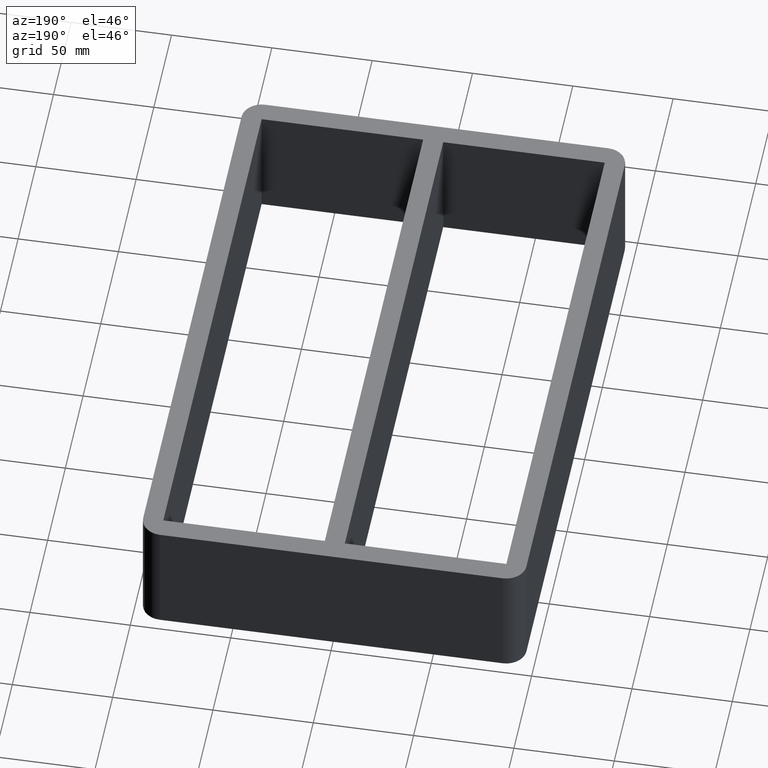
[diagram: clean part render]
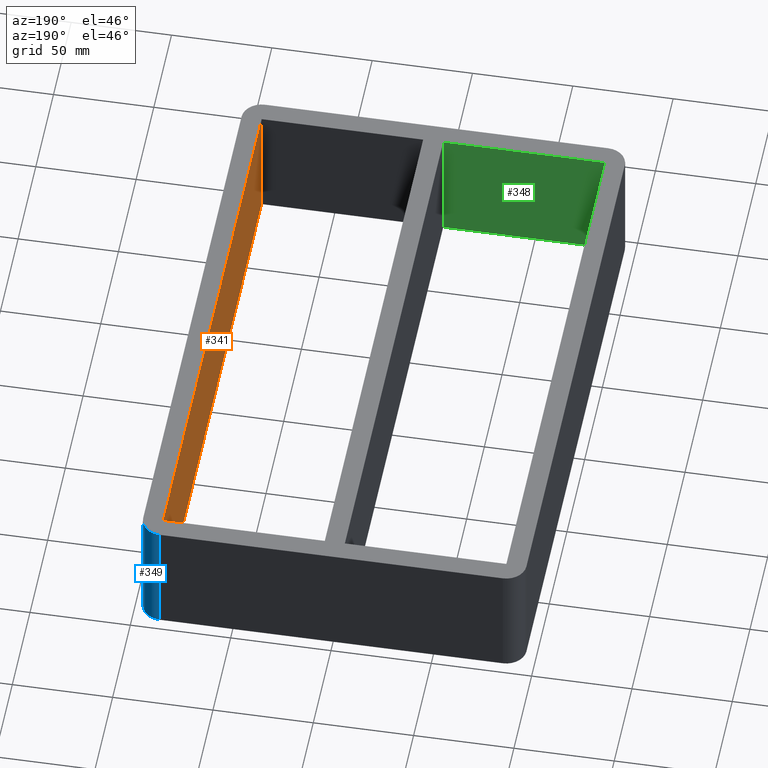
[diagram: same view with three faces highlighted in distinct colors, each labeled with its STEP entity id]
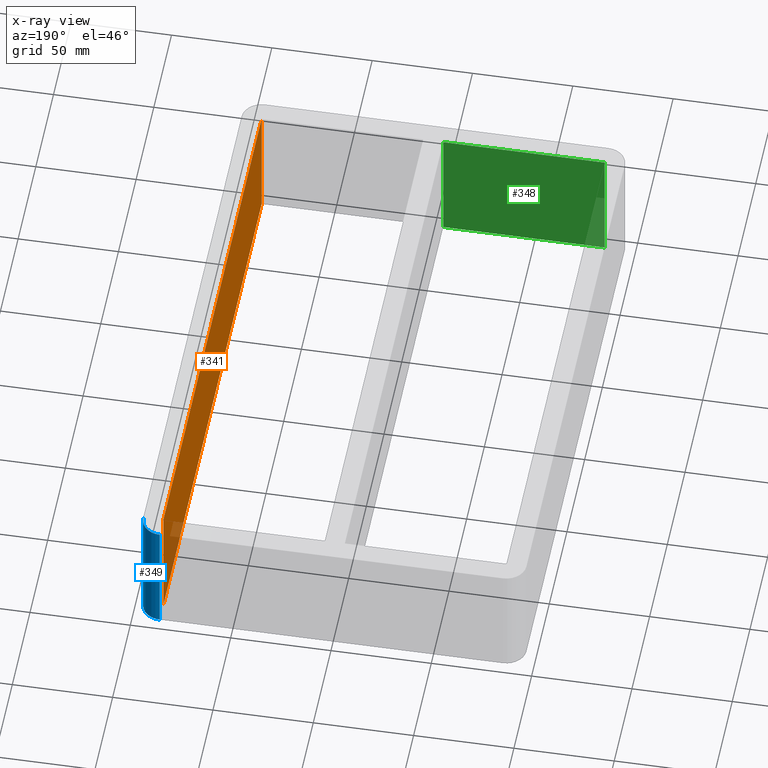
[diagram: x-ray of the same camera — body ghosted, the three highlighted faces saturated]
A machine part, auxiliary view with three faces highlighted in distinct colors.
The next image is the same camera in x-ray (body ghosted, the three faces saturated) — at least one of them is partly hidden behind the body in this view.
Their STEP definitions:

[orange] entity #341 — the highlighted planar face has unit normal (1, 0, 0).
#31=FACE_OUTER_BOUND('',#49,.T.);
#49=EDGE_LOOP('',(#231,#232,#233,#234));
#71=LINE('',#503,#111);
#72=LINE('',#505,#112);
#73=LINE('',#507,#113);
#74=LINE('',#508,#114);
#111=VECTOR('',#409,10.);
#112=VECTOR('',#410,10.);
#113=VECTOR('',#411,10.);
#114=VECTOR('',#412,10.);
#151=VERTEX_POINT('',#501);
#152=VERTEX_POINT('',#502);
#153=VERTEX_POINT('',#504);
#154=VERTEX_POINT('',#506);
#183=EDGE_CURVE('',#151,#152,#71,.T.);
#184=EDGE_CURVE('',#153,#151,#72,.T.);
#185=EDGE_CURVE('',#154,#153,#73,.T.);
#186=EDGE_CURVE('',#154,#152,#74,.T.);
#231=ORIENTED_EDGE('',*,*,#183,.F.);
#232=ORIENTED_EDGE('',*,*,#184,.F.);
#233=ORIENTED_EDGE('',*,*,#185,.F.);
#234=ORIENTED_EDGE('',*,*,#186,.T.);
#327=PLANE('',#379);
#341=ADVANCED_FACE('',(#31),#327,.F.);
#379=AXIS2_PLACEMENT_3D('',#500,#407,#408);
#407=DIRECTION('center_axis',(1.,6.38977280359802E-17,0.));
#408=DIRECTION('ref_axis',(6.38977280359802E-17,-1.,0.));
#409=DIRECTION('',(-6.38977280359802E-17,1.,0.));
#410=DIRECTION('',(0.,0.,-1.));
#411=DIRECTION('',(6.38977280359802E-17,-1.,0.));
#412=DIRECTION('',(0.,0.,-1.));
#500=CARTESIAN_POINT('Origin',(85.4999999999982,138.999999999991,0.));
#501=CARTESIAN_POINT('',(85.4999999999982,-139.000000000009,-60.));
#502=CARTESIAN_POINT('',(85.4999999999982,138.999999999991,-60.));
#503=CARTESIAN_POINT('',(85.4999999999982,69.4999999999954,-60.));
#504=CARTESIAN_POINT('',(85.4999999999982,-139.000000000009,0.));
#505=CARTESIAN_POINT('',(85.4999999999982,-139.000000000009,0.));
#506=CARTESIAN_POINT('',(85.4999999999982,138.999999999991,0.));
#507=CARTESIAN_POINT('',(85.4999999999982,69.4999999999954,0.));
#508=CARTESIAN_POINT('',(85.4999999999982,138.999999999991,0.));

[blue] entity #349 — the highlighted cylindrical surface (edge-blend (fillet) strip) has radius 10 mm, axis along (0, 0, -1).
#19=CIRCLE('',#388,10.);
#20=CIRCLE('',#389,10.);
#27=CYLINDRICAL_SURFACE('',#387,10.);
#39=FACE_OUTER_BOUND('',#57,.T.);
#57=EDGE_LOOP('',(#263,#264,#265,#266));
#95=LINE('',#553,#135);
#96=LINE('',#556,#136);
#135=VECTOR('',#451,10.);
#136=VECTOR('',#454,10.);
#167=VERTEX_POINT('',#549);
#168=VERTEX_POINT('',#550);
#169=VERTEX_POINT('',#552);
#170=VERTEX_POINT('',#554);
#207=EDGE_CURVE('',#167,#168,#19,.T.);
#208=EDGE_CURVE('',#168,#169,#95,.T.);
#209=EDGE_CURVE('',#169,#170,#20,.T.);
#210=EDGE_CURVE('',#170,#167,#96,.T.);
#263=ORIENTED_EDGE('',*,*,#207,.T.);
#264=ORIENTED_EDGE('',*,*,#208,.T.);
#265=ORIENTED_EDGE('',*,*,#209,.T.);
#266=ORIENTED_EDGE('',*,*,#210,.T.);
#349=ADVANCED_FACE('',(#39),#27,.T.);
#387=AXIS2_PLACEMENT_3D('',#548,#447,#448);
#388=AXIS2_PLACEMENT_3D('',#551,#449,#450);
#389=AXIS2_PLACEMENT_3D('',#555,#452,#453);
#447=DIRECTION('center_axis',(0.,0.,-1.));
#448=DIRECTION('ref_axis',(0.707106781186547,0.707106781186547,0.));
#449=DIRECTION('center_axis',(0.,0.,1.));
#450=DIRECTION('ref_axis',(0.707106781186547,0.707106781186547,0.));
#451=DIRECTION('',(0.,0.,1.));
#452=DIRECTION('center_axis',(0.,0.,-1.));
#453=DIRECTION('ref_axis',(0.707106781186547,0.707106781186547,0.));
#454=DIRECTION('',(0.,0.,-1.));
#548=CARTESIAN_POINT('Origin',(85.5,139.,0.));
#549=CARTESIAN_POINT('',(95.5,139.,-60.));
#550=CARTESIAN_POINT('',(85.5,149.,-60.));
#551=CARTESIAN_POINT('Origin',(85.5,139.,-60.));
#552=CARTESIAN_POINT('',(85.5,149.,0.));
#553=CARTESIAN_POINT('',(85.5,149.,0.));
#554=CARTESIAN_POINT('',(95.5,139.,0.));
#555=CARTESIAN_POINT('Origin',(85.5,139.,0.));
#556=CARTESIAN_POINT('',(95.5,139.,0.));

[green] entity #348 — the highlighted planar face has unit normal (0, -1, 0).
#38=FACE_OUTER_BOUND('',#56,.T.);
#56=EDGE_LOOP('',(#259,#260,#261,#262));
#84=LINE('',#529,#124);
#92=LINE('',#544,#132);
#93=LINE('',#546,#133);
#94=LINE('',#547,#134);
#124=VECTOR('',#430,10.);
#132=VECTOR('',#442,10.);
#133=VECTOR('',#445,10.);
#134=VECTOR('',#446,10.);
#159=VERTEX_POINT('',#525);
#161=VERTEX_POINT('',#528);
#165=VERTEX_POINT('',#540);
#166=VERTEX_POINT('',#542);
#196=EDGE_CURVE('',#161,#159,#84,.T.);
#204=EDGE_CURVE('',#166,#165,#92,.T.);
#205=EDGE_CURVE('',#165,#159,#93,.T.);
#206=EDGE_CURVE('',#161,#166,#94,.T.);
#259=ORIENTED_EDGE('',*,*,#205,.F.);
#260=ORIENTED_EDGE('',*,*,#204,.F.);
#261=ORIENTED_EDGE('',*,*,#206,.F.);
#262=ORIENTED_EDGE('',*,*,#196,.T.);
#334=PLANE('',#386);
#348=ADVANCED_FACE('',(#38),#334,.F.);
#386=AXIS2_PLACEMENT_3D('',#545,#443,#444);
#430=DIRECTION('',(0.,0.,-1.));
#442=DIRECTION('',(0.,0.,-1.));
#443=DIRECTION('center_axis',(2.2066544588823E-16,-1.,0.));
#444=DIRECTION('ref_axis',(-1.,-2.2066544588823E-16,0.));
#445=DIRECTION('',(1.,2.2066544588823E-16,0.));
#446=DIRECTION('',(-1.,-2.2066544588823E-16,0.));
#525=CARTESIAN_POINT('',(-5.00000000000181,-139.000000000009,-60.));
#528=CARTESIAN_POINT('',(-5.00000000000181,-139.000000000009,0.));
#529=CARTESIAN_POINT('',(-5.00000000000181,-139.000000000009,0.));
#540=CARTESIAN_POINT('',(-85.5000000000018,-139.000000000009,-60.));
#542=CARTESIAN_POINT('',(-85.5000000000018,-139.000000000009,0.));
#544=CARTESIAN_POINT('',(-85.5000000000018,-139.000000000009,0.));
#545=CARTESIAN_POINT('Origin',(-5.00000000000181,-139.000000000009,0.));
#546=CARTESIAN_POINT('',(-2.50000000000089,-139.000000000009,-60.));
#547=CARTESIAN_POINT('',(-2.50000000000089,-139.000000000009,0.));